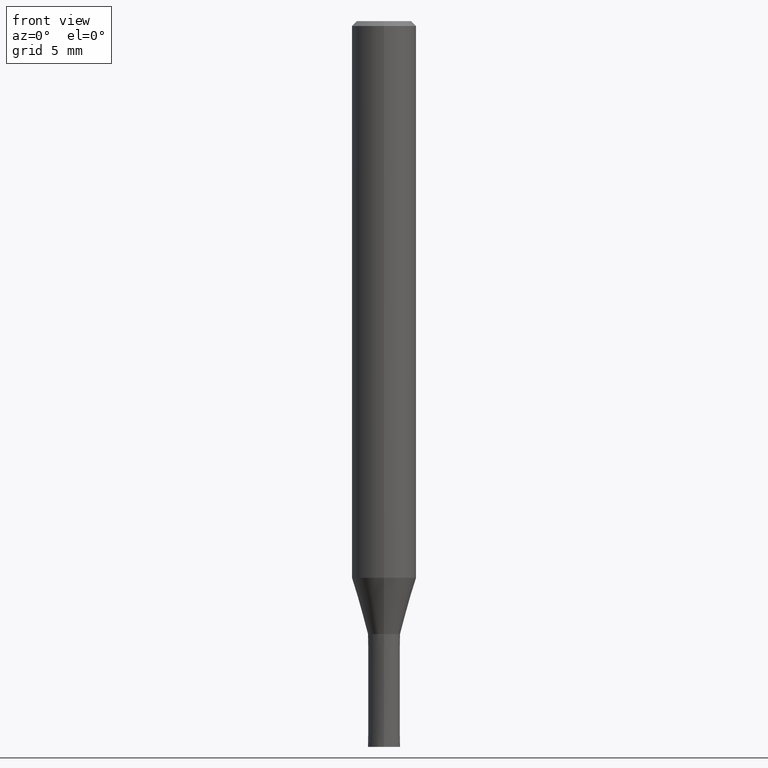
[diagram: clean part render]
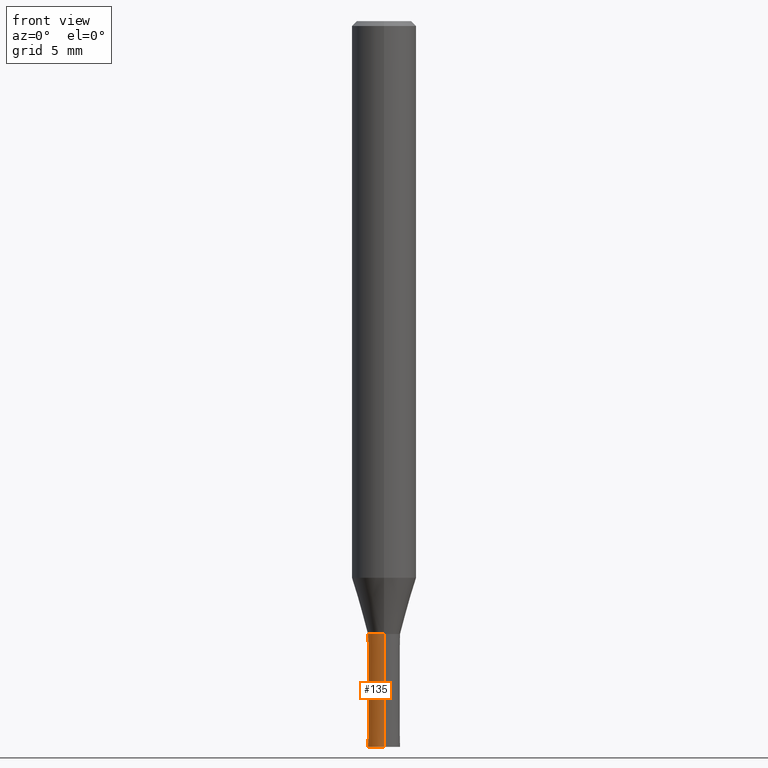
[diagram: same view with one face highlighted and labeled with its STEP entity id]
A machine part, front view. The second image highlights one B-rep face of the part: STEP entity #135.
In plain terms, the highlighted conical surface has half-angle 0.001 deg.
Its self-contained STEP definition (entity closure, byte-faithful):
#121=VERTEX_POINT('',#294);
#131=EDGE_CURVE('',#247,#121,#307,.T.);
#135=ADVANCED_FACE('',(#311),#312,.T.);
#175=VERTEX_POINT('',#360);
#193=EDGE_CURVE('',#175,#121,#379,.T.);
#197=EDGE_CURVE('',#255,#175,#383,.T.);
#215=EDGE_CURVE('',#247,#255,#403,.T.);
#247=VERTEX_POINT('',#439);
#255=VERTEX_POINT('',#448);
#294=CARTESIAN_POINT('',(0.0,1.0,-45.0));
#307=CIRCLE('',#498,1.0);
#311=FACE_OUTER_BOUND('',#502,.T.);
#312=CONICAL_SURFACE('',#503,0.99995,1.42857142847409E-005);
#360=CARTESIAN_POINT('',(0.0,0.9999,-38.0));
#379=LINE('',#584,#585);
#383=CIRCLE('',#591,0.9999);
#403=LINE('',#619,#620);
#439=CARTESIAN_POINT('',(1.22460635382238E-016,-1.0,-45.0));
#448=CARTESIAN_POINT('',(1.224483893187E-016,-0.9999,-38.0));
#498=AXIS2_PLACEMENT_3D('',#725,#726,#727);
#502=EDGE_LOOP('',(#729,#730,#731,#732));
#503=AXIS2_PLACEMENT_3D('',#733,#734,#735);
#584=CARTESIAN_POINT('',(-1.22454512350469E-016,0.99995,-41.5));
#585=VECTOR('',#813,1.0);
#591=AXIS2_PLACEMENT_3D('',#817,#818,#819);
#619=CARTESIAN_POINT('',(1.22454512350469E-016,-0.99995,-41.5));
#620=VECTOR('',#847,1.0);
#725=CARTESIAN_POINT('',(0.0,0.0,-45.0));
#726=DIRECTION('',(0.0,0.0,-1.0));
#727=DIRECTION('',(0.0,1.0,0.0));
#729=ORIENTED_EDGE('',*,*,#193,.T.);
#730=ORIENTED_EDGE('',*,*,#131,.F.);
#731=ORIENTED_EDGE('',*,*,#215,.T.);
#732=ORIENTED_EDGE('',*,*,#197,.T.);
#733=CARTESIAN_POINT('',(0.0,0.0,-41.5));
#734=DIRECTION('',(0.0,-0.0,-1.0));
#735=DIRECTION('',(0.0,1.0,0.0));
#813=DIRECTION('',(-1.74943764813898E-021,1.4285714284255E-005,-0.999999999897959));
#817=CARTESIAN_POINT('',(0.0,0.0,-38.0));
#818=DIRECTION('',(0.0,0.0,-1.0));
#819=DIRECTION('',(0.0,1.0,0.0));
#847=DIRECTION('',(-1.74943764813897E-021,1.4285714284255E-005,0.999999999897959));